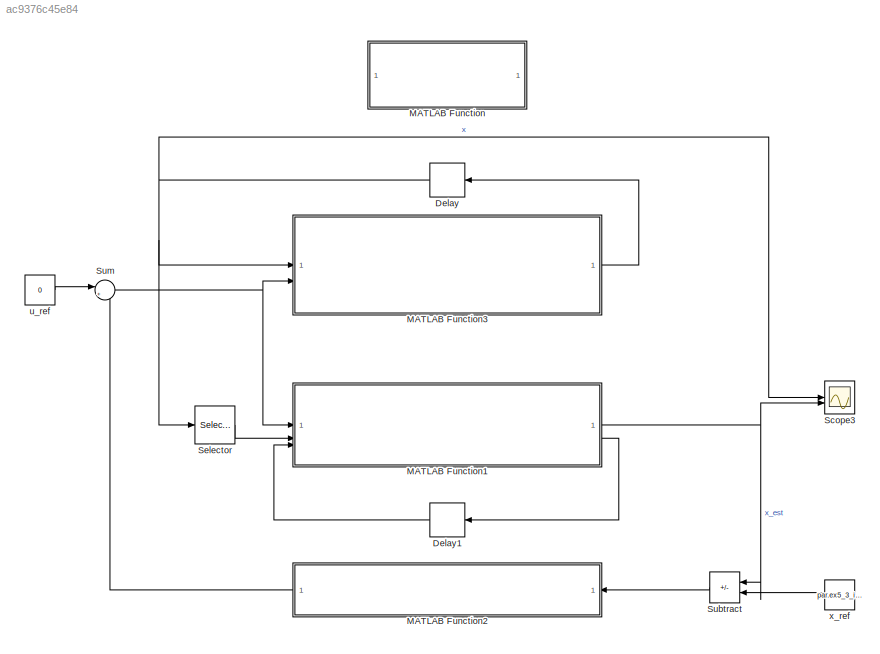
MODEL slx_ac9376c45e84
KIND model
CONFIG AbsTol = auto
CONFIG EnableMultiTasking = off
CONFIG FixedStep = 0.001
CONFIG MaxStep = auto
CONFIG MinStep = auto
CONFIG RelTol = 1e-3
CONFIG SampleTimeConstraint = Unconstrained
CONFIG SolverName = ode4
CONFIG StartTime = 0.0
CONFIG StopTime = 10.0
BLOCK [Delay] Delay
  DelayLength = 1
  InitialCondition = par.ex5_3_iii_x0
  InputPortMap = u0
BLOCK [Delay] Delay1
  DelayLength = 1
  InitialCondition = par.ex5_3_iii_x0_hat
  InputPortMap = u0
  UseCircularBuffer = on
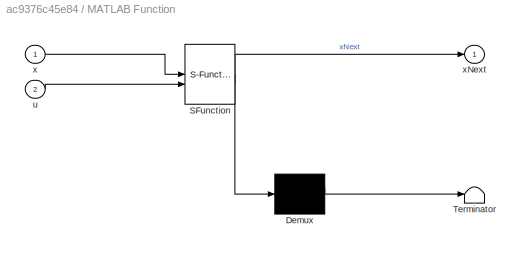
BLOCK [SubSystem] MATLAB Function
  Commented = on
  ErrorFcn = Stateflow.Translate.translate
  PermitHierarchicalResolution = ExplicitOnly
  SFBlockType = MATLAB Function
  TreatAsAtomicUnit = on
BLOCK [Demux] MATLAB Function/ Demux 
  Outputs = 1
BLOCK [S-Function] MATLAB Function/ SFunction 
  EnableBusSupport = on
  FunctionName = sf_sfun
  Parameters = par
  PortCounts = [2 2]
  SFcnIsStateOwnerBlock = off
  SFunctionDeploymentMode = off
  Tag = Stateflow S-Function 2
BLOCK [Terminator] MATLAB Function/ Terminator 
BLOCK [Inport] MATLAB Function/u
  Port = 2
BLOCK [Inport] MATLAB Function/x
BLOCK [Outport] MATLAB Function/xNext
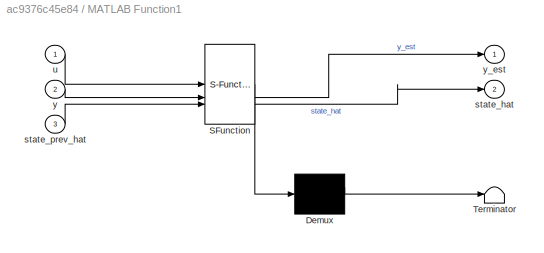
BLOCK [SubSystem] MATLAB Function1
  ErrorFcn = Stateflow.Translate.translate
  PermitHierarchicalResolution = ExplicitOnly
  SFBlockType = MATLAB Function
  TreatAsAtomicUnit = on
BLOCK [Demux] MATLAB Function1/ Demux 
  Outputs = 1
BLOCK [S-Function] MATLAB Function1/ SFunction 
  EnableBusSupport = on
  FunctionName = sf_sfun
  Parameters = par
  PortCounts = [3 3]
  SFcnIsStateOwnerBlock = off
  SFunctionDeploymentMode = off
  Tag = Stateflow S-Function 3
BLOCK [Terminator] MATLAB Function1/ Terminator 
BLOCK [Outport] MATLAB Function1/state_hat
  Port = 2
BLOCK [Inport] MATLAB Function1/state_prev_hat
  Port = 3
BLOCK [Inport] MATLAB Function1/u
BLOCK [Inport] MATLAB Function1/y
  Port = 2
BLOCK [Outport] MATLAB Function1/y_est
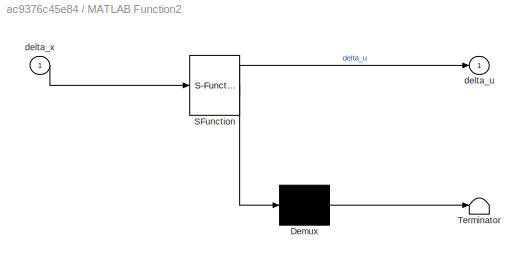
BLOCK [SubSystem] MATLAB Function2
  ErrorFcn = Stateflow.Translate.translate
  LibrarySourceBlock = simulink/User-Defined\nFunctions/MATLAB Function
  PermitHierarchicalResolution = ExplicitOnly
  SFBlockType = MATLAB Function
  TreatAsAtomicUnit = on
BLOCK [Demux] MATLAB Function2/ Demux 
  Outputs = 1
BLOCK [S-Function] MATLAB Function2/ SFunction 
  EnableBusSupport = on
  FunctionName = sf_sfun
  Parameters = par
  PortCounts = [1 2]
  SFcnIsStateOwnerBlock = off
  SFunctionDeploymentMode = off
  Tag = Stateflow S-Function 1
BLOCK [Terminator] MATLAB Function2/ Terminator 
BLOCK [Outport] MATLAB Function2/delta_u
BLOCK [Inport] MATLAB Function2/delta_x
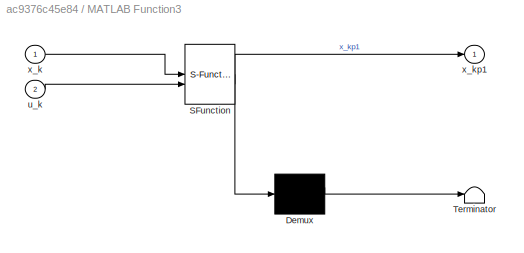
BLOCK [SubSystem] MATLAB Function3
  ErrorFcn = Stateflow.Translate.translate
  PermitHierarchicalResolution = ExplicitOnly
  SFBlockType = MATLAB Function
  TreatAsAtomicUnit = on
BLOCK [Demux] MATLAB Function3/ Demux 
  Outputs = 1
BLOCK [S-Function] MATLAB Function3/ SFunction 
  EnableBusSupport = on
  FunctionName = sf_sfun
  Parameters = par
  PortCounts = [2 2]
  SFcnIsStateOwnerBlock = off
  SFunctionDeploymentMode = off
  Tag = Stateflow S-Function 4
BLOCK [Terminator] MATLAB Function3/ Terminator 
BLOCK [Inport] MATLAB Function3/u_k
  Port = 2
BLOCK [Inport] MATLAB Function3/x_k
BLOCK [Outport] MATLAB Function3/x_kp1
BLOCK [Scope] Scope3
  Floating = off
  NumInputPorts = 2
  ScopeSpecificationString = Simulink.scopes.TimeScopeBlockCfg('CurrentConfiguration', extmgr.ConfigurationSet(extmgr.Configuration('Core','General UI',true),extmgr.Configuration('Core','Source UI',true),extmgr.Configuration('Sources','WiredSimulink',true,'DataLoggingVariableName','ScopeData3'),extmgr.Configuration('Visuals','Time Domain',true,'SerializedDisplays',{struct('MinYLimReal','-0.14636','MaxYLimReal','1.13955','YLab...<+1548ch>
BLOCK [Selector] Selector
  IndexOptions = Index vector (dialog)
  Indices = [1]
  InputPortWidth = 2
  OutputSizes = 1
BLOCK [Sum] Subtract
  IconShape = rectangular
  Inputs = -+
  NameLocation = top
BLOCK [Sum] Sum
  Inputs = |++
BLOCK [Constant] u_ref
  Value = 0
BLOCK [Constant] x_ref
  Value = par.ex5_3_iv_x_ref
LINE Delay1:1 -> MATLAB Function1:3
NET Delay:1 -> MATLAB Function3:1, Scope3:1, Selector:1
NET MATLAB Function1:1 -> Scope3:2, Subtract:1
LINE MATLAB Function1:2 -> Delay1:1
LINE MATLAB Function2:1 -> Sum:2
LINE MATLAB Function3:1 -> Delay:1
LINE Selector:1 -> MATLAB Function1:2
LINE Subtract:1 -> MATLAB Function2:1
NET Sum:1 -> MATLAB Function1:1, MATLAB Function3:2
LINE u_ref:1 -> Sum:1
LINE x_ref:1 -> Subtract:2
note: NET lines group one-source signal fan-out (src -> all destinations, sorted); 1:1 wires keep LINE
CHART MATLAB Function2 states=1 transitions=1
  STATE_LABEL 'eML_blk_kernel()'
  STATE_LABEL 'SCRIPT:\nfunction delta_u = feedback_controller(delta_x,par)\n\nk = par.ex5_3_iv_k;\ndelta_u = k*delta_x;\n\nend\n'
CHART MATLAB Function states=1 transitions=1
  STATE_LABEL 'eML_blk_kernel()'
  STATE_LABEL 'SCRIPT:\nfunction xNext = explicitEuler(x,u,par)\n \n    h = par.timeStep;\n    xNext = x + h*reducedModel( x, u, par);\n\nend\n\nfunction dx = reducedModel( x, u, par )\n    \n    % system parameters   \n    g = par.g;\n\n    % States vector\n    x2 = x(2);\n\n    % Preallocate\n    dx = zeros(2,1);\n\n    % reduced model\n    dx(1) = x2;\n    dx(2) = -(5/7)*g*sin(u);\nend\n'
CHART MATLAB Function1 states=1 transitions=1
  STATE_LABEL 'eML_blk_kernel()'
  STATE_LABEL 'SCRIPT:\nfunction [y_est, state_hat] = extKalF(u, y, state_prev_hat, par )\n    \n    R = par.R;          % Measurement covariance matrix\n    Q = par.Q;          % Process covariance matrix\n\n    ts = par.timeStep;  % discretization timestep for the explicit euler\n\n    h = @(x) [x(1)];    % As we only measure the first state\n    \n    H = [1 0];          % Measurement Jacobian        \n    dF = [ 0 1; 0...<+810ch>'
CHART MATLAB Function3 states=1 transitions=1
  STATE_LABEL 'eML_blk_kernel()'
  STATE_LABEL 'SCRIPT:\nfunction x_kp1 = ball_and_beam_reduced_discrete(x_k, u_k, par)\n%#codegen\nx_kp1 = ball_and_beam_reduced_discrete(x_k, u_k, par);\n'
CHART  states=0 transitions=0
CHART  states=0 transitions=0
CHART  states=0 transitions=0
CHART  states=0 transitions=0
